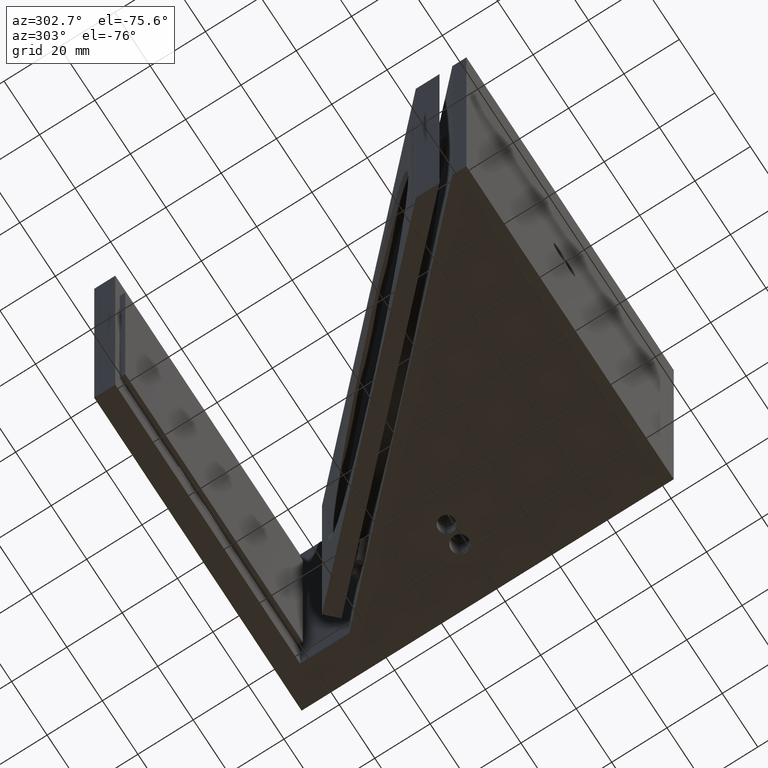
[diagram: clean part render]
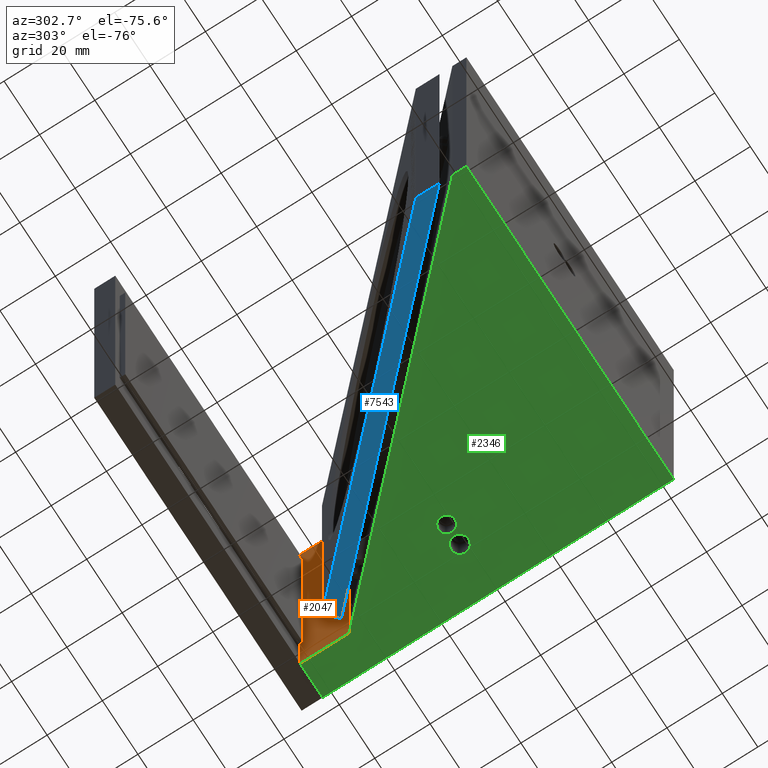
[diagram: same view with three faces highlighted in distinct colors, each labeled with its STEP entity id]
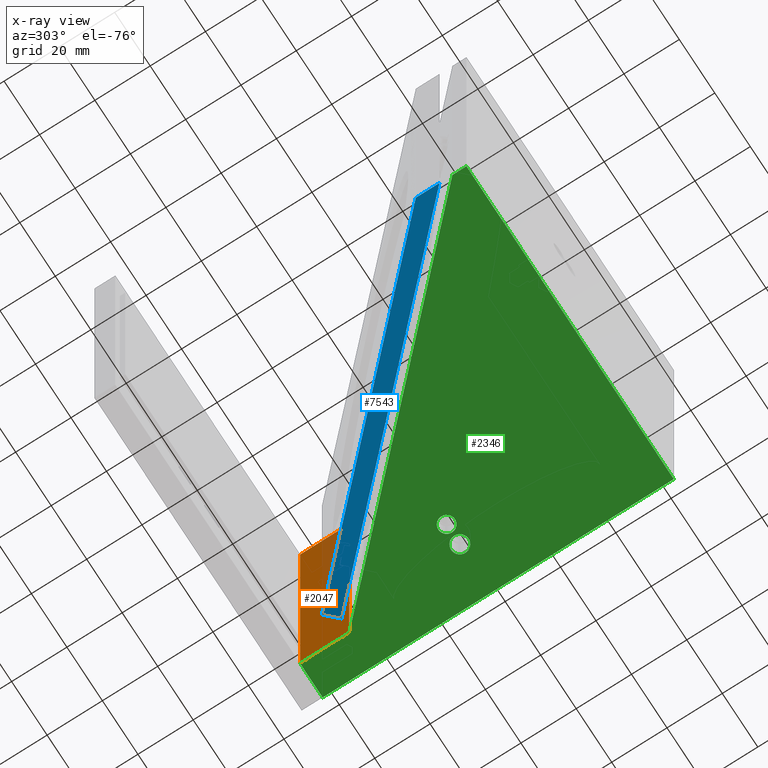
[diagram: x-ray of the same camera — body ghosted, the three highlighted faces saturated]
A machine part, auxiliary view with three faces highlighted in distinct colors.
The next image is the same camera in x-ray (body ghosted, the three faces saturated) — at least one of them is partly hidden behind the body in this view.
Their STEP definitions:

[orange] entity #2047 — the highlighted planar face has unit normal (1, 0, 0).
#2047 = ADVANCED_FACE ( 'NONE', ( #16102 ), #16151, .F. ) ;
#2049 = EDGE_LOOP ( 'NONE', ( #2051, #2056, #2061, #2065 ) ) ;
#2051 = ORIENTED_EDGE ( 'NONE', *, *, #2052, .T. ) ;
#2052 = EDGE_CURVE ( 'NONE', #2086, #2055, #16146, .T. ) ;
#2055 = VERTEX_POINT ( 'NONE', #16142 ) ;
#2056 = ORIENTED_EDGE ( 'NONE', *, *, #2058, .F. ) ;
#2058 = EDGE_CURVE ( 'NONE', #2060, #2055, #16141, .T. ) ;
#2060 = VERTEX_POINT ( 'NONE', #16137 ) ;
#2061 = ORIENTED_EDGE ( 'NONE', *, *, #2063, .F. ) ;
#2063 = EDGE_CURVE ( 'NONE', #2091, #2060, #16135, .T. ) ;
#2065 = ORIENTED_EDGE ( 'NONE', *, *, #2090, .T. ) ;
#2086 = VERTEX_POINT ( 'NONE', #16211 ) ;
#2090 = EDGE_CURVE ( 'NONE', #2091, #2086, #16210, .T. ) ;
#2091 = VERTEX_POINT ( 'NONE', #16206 ) ;
#16102 = FACE_OUTER_BOUND ( 'NONE', #2049, .T. ) ;
#16132 = DIRECTION ( 'NONE',  ( 0.0000000000000000000, -1.000000000000000000, 0.0000000000000000000 ) ) ;
#16133 = VECTOR ( 'NONE', #16132, 39.37007874015748100 ) ;
#16134 = CARTESIAN_POINT ( 'NONE',  ( 3.283458390377920600, 4.862681264191446800, 5.250000000000000000 ) ) ;
#16135 = LINE ( 'NONE', #16134, #16133 ) ;
#16137 = CARTESIAN_POINT ( 'NONE',  ( 3.283458390377920600, 4.162681264191463400, 5.250000000000000000 ) ) ;
#16138 = DIRECTION ( 'NONE',  ( 0.0000000000000000000, 0.0000000000000000000, -1.000000000000000000 ) ) ;
#16139 = VECTOR ( 'NONE', #16138, 39.37007874015748100 ) ;
#16140 = CARTESIAN_POINT ( 'NONE',  ( 3.283458390377920600, 4.162681264191463400, 5.250000000000000000 ) ) ;
#16141 = LINE ( 'NONE', #16140, #16139 ) ;
#16142 = CARTESIAN_POINT ( 'NONE',  ( 3.283458390377920600, 4.162681264191463400, 0.0000000000000000000 ) ) ;
#16143 = DIRECTION ( 'NONE',  ( 0.0000000000000000000, -1.000000000000000000, 0.0000000000000000000 ) ) ;
#16144 = VECTOR ( 'NONE', #16143, 39.37007874015748100 ) ;
#16145 = CARTESIAN_POINT ( 'NONE',  ( 3.283458390377920600, 4.862681264191446800, 0.0000000000000000000 ) ) ;
#16146 = LINE ( 'NONE', #16145, #16144 ) ;
#16147 = DIRECTION ( 'NONE',  ( 0.0000000000000000000, 0.0000000000000000000, -1.000000000000000000 ) ) ;
#16148 = DIRECTION ( 'NONE',  ( 1.000000000000000000, 0.0000000000000000000, 0.0000000000000000000 ) ) ;
#16149 = CARTESIAN_POINT ( 'NONE',  ( 3.283458390377920600, 4.862681264191446800, 5.250000000000000000 ) ) ;
#16150 = AXIS2_PLACEMENT_3D ( 'NONE', #16149, #16148, #16147 ) ;
#16151 = PLANE ( 'NONE',  #16150 ) ;
#16206 = CARTESIAN_POINT ( 'NONE',  ( 3.283458390377920600, 4.862681264191446800, 5.250000000000000000 ) ) ;
#16207 = DIRECTION ( 'NONE',  ( 0.0000000000000000000, 0.0000000000000000000, -1.000000000000000000 ) ) ;
#16208 = VECTOR ( 'NONE', #16207, 39.37007874015748100 ) ;
#16209 = CARTESIAN_POINT ( 'NONE',  ( 3.283458390377920600, 4.862681264191446800, 5.250000000000000000 ) ) ;
#16210 = LINE ( 'NONE', #16209, #16208 ) ;
#16211 = CARTESIAN_POINT ( 'NONE',  ( 3.283458390377920600, 4.862681264191446800, 0.0000000000000000000 ) ) ;

[blue] entity #7543 — the highlighted planar face has unit normal (0, -0, 1).
#6770 = EDGE_CURVE ( 'NONE', #6772, #6774, #25186, .T. ) ;
#6772 = VERTEX_POINT ( 'NONE', #25182 ) ;
#6774 = VERTEX_POINT ( 'NONE', #25181 ) ;
#7504 = EDGE_LOOP ( 'NONE', ( #7505, #7510, #7513, #7515 ) ) ;
#7505 = ORIENTED_EDGE ( 'NONE', *, *, #7506, .F. ) ;
#7506 = EDGE_CURVE ( 'NONE', #7507, #7508, #26295, .T. ) ;
#7507 = VERTEX_POINT ( 'NONE', #26291 ) ;
#7508 = VERTEX_POINT ( 'NONE', #26351 ) ;
#7510 = ORIENTED_EDGE ( 'NONE', *, *, #7511, .T. ) ;
#7511 = EDGE_CURVE ( 'NONE', #7507, #6772, #26350, .T. ) ;
#7513 = ORIENTED_EDGE ( 'NONE', *, *, #6770, .T. ) ;
#7515 = ORIENTED_EDGE ( 'NONE', *, *, #7517, .F. ) ;
#7517 = EDGE_CURVE ( 'NONE', #7508, #6774, #26345, .T. ) ;
#7543 = ADVANCED_FACE ( 'NONE', ( #26433 ), #26414, .F. ) ;
#25181 = CARTESIAN_POINT ( 'NONE',  ( 2.914165028216014500, 4.313925924965463600, -5.463695987328526400E-016 ) ) ;
#25182 = CARTESIAN_POINT ( 'NONE',  ( -0.8165416096220778900, 0.5832192871273520500, 1.092739197465705300E-015 ) ) ;
#25183 = DIRECTION ( 'NONE',  ( 0.7071067811865458000, 0.7071067811865493500, -5.967389539223752300E-017 ) ) ;
#25184 = VECTOR ( 'NONE', #25183, 39.37007874015748100 ) ;
#25185 = CARTESIAN_POINT ( 'NONE',  ( -1.050582693896948500, 0.3491782028524804100, 0.0000000000000000000 ) ) ;
#25186 = LINE ( 'NONE', #25185, #25184 ) ;
#26291 = CARTESIAN_POINT ( 'NONE',  ( -0.8165416096220781100, 0.2466364592825541800, 5.463695987328526400E-016 ) ) ;
#26292 = DIRECTION ( 'NONE',  ( 0.7071067811865458000, 0.7071067811865493500, -5.967389539223752300E-017 ) ) ;
#26293 = VECTOR ( 'NONE', #26292, 39.37007874015748100 ) ;
#26294 = CARTESIAN_POINT ( 'NONE',  ( -0.8822912799745500400, 0.1808867889300820600, 0.0000000000000000000 ) ) ;
#26295 = LINE ( 'NONE', #26294, #26293 ) ;
#26342 = DIRECTION ( 'NONE',  ( -0.7071067811865489100, 0.7071067811865460200, -7.582389110198106800E-017 ) ) ;
#26343 = VECTOR ( 'NONE', #26342, 39.37007874015748900 ) ;
#26344 = CARTESIAN_POINT ( 'NONE',  ( 3.082456442138413500, 4.145634511043065900, -5.463695987328526400E-016 ) ) ;
#26345 = LINE ( 'NONE', #26344, #26343 ) ;
#26347 = DIRECTION ( 'NONE',  ( -1.110223024625153700E-016, 1.000000000000000000, 1.458569382141291400E-015 ) ) ;
#26348 = VECTOR ( 'NONE', #26347, 39.37007874015748100 ) ;
#26349 = CARTESIAN_POINT ( 'NONE',  ( -0.8165416096220781100, 0.2466364592825541800, 5.463695987328526400E-016 ) ) ;
#26350 = LINE ( 'NONE', #26349, #26348 ) ;
#26351 = CARTESIAN_POINT ( 'NONE',  ( 3.082456442138413500, 4.145634511043065900, -5.463695987328526400E-016 ) ) ;
#26409 = DIRECTION ( 'NONE',  ( -0.7071067811865458000, -0.7071067811865493500, 5.967389539223753500E-017 ) ) ;
#26410 = DIRECTION ( 'NONE',  ( 8.909205914159249700E-017, -4.700426958256610100E-018, 1.000000000000000000 ) ) ;
#26411 = CARTESIAN_POINT ( 'NONE',  ( -0.8822912799745500400, 0.1808867889300820600, 0.0000000000000000000 ) ) ;
#26412 = AXIS2_PLACEMENT_3D ( 'NONE', #26411, #26410, #26409 ) ;
#26414 = PLANE ( 'NONE',  #26412 ) ;
#26433 = FACE_OUTER_BOUND ( 'NONE', #7504, .T. ) ;

[green] entity #2346 — the highlighted planar face has unit normal (0, 0, 1).
#1656 = VERTEX_POINT ( 'NONE', #15254 ) ;
#1680 = EDGE_CURVE ( 'NONE', #1656, #1682, #15323, .T. ) ;
#1682 = VERTEX_POINT ( 'NONE', #15318 ) ;
#2003 = EDGE_CURVE ( 'NONE', #2005, #2007, #16043, .T. ) ;
#2005 = VERTEX_POINT ( 'NONE', #16039 ) ;
#2007 = VERTEX_POINT ( 'NONE', #16038 ) ;
#2052 = EDGE_CURVE ( 'NONE', #2086, #2055, #16146, .T. ) ;
#2055 = VERTEX_POINT ( 'NONE', #16142 ) ;
#2084 = EDGE_CURVE ( 'NONE', #2007, #2086, #16155, .T. ) ;
#2086 = VERTEX_POINT ( 'NONE', #16211 ) ;
#2257 = EDGE_CURVE ( 'NONE', #2264, #2005, #16361, .T. ) ;
#2262 = EDGE_CURVE ( 'NONE', #2291, #2264, #16446, .T. ) ;
#2264 = VERTEX_POINT ( 'NONE', #16442 ) ;
#2288 = EDGE_CURVE ( 'NONE', #2055, #2291, #16454, .T. ) ;
#2291 = VERTEX_POINT ( 'NONE', #16450 ) ;
#2329 = ORIENTED_EDGE ( 'NONE', *, *, #2262, .F. ) ;
#2330 = ORIENTED_EDGE ( 'NONE', *, *, #2288, .F. ) ;
#2332 = ORIENTED_EDGE ( 'NONE', *, *, #2052, .F. ) ;
#2333 = ORIENTED_EDGE ( 'NONE', *, *, #2084, .F. ) ;
#2346 = ADVANCED_FACE ( 'NONE', ( #16475, #16474, #16473 ), #16514, .F. ) ;
#2349 = EDGE_LOOP ( 'NONE', ( #2351, #2356 ) ) ;
#2351 = ORIENTED_EDGE ( 'NONE', *, *, #2353, .F. ) ;
#2353 = EDGE_CURVE ( 'NONE', #2544, #2541, #16508, .T. ) ;
#2356 = ORIENTED_EDGE ( 'NONE', *, *, #2543, .F. ) ;
#2461 = EDGE_LOOP ( 'NONE', ( #2462, #2464 ) ) ;
#2462 = ORIENTED_EDGE ( 'NONE', *, *, #2463, .F. ) ;
#2463 = EDGE_CURVE ( 'NONE', #1682, #1656, #16732, .T. ) ;
#2464 = ORIENTED_EDGE ( 'NONE', *, *, #1680, .F. ) ;
#2466 = EDGE_LOOP ( 'NONE', ( #2468, #2470, #2329, #2330, #2332, #2333 ) ) ;
#2468 = ORIENTED_EDGE ( 'NONE', *, *, #2003, .F. ) ;
#2470 = ORIENTED_EDGE ( 'NONE', *, *, #2257, .F. ) ;
#2541 = VERTEX_POINT ( 'NONE', #16909 ) ;
#2543 = EDGE_CURVE ( 'NONE', #2541, #2544, #16908, .T. ) ;
#2544 = VERTEX_POINT ( 'NONE', #16903 ) ;
#12851 = DIRECTION ( 'NONE',  ( -1.000000000000000000, 0.0000000000000000000, 0.0000000000000000000 ) ) ;
#15254 = CARTESIAN_POINT ( 'NONE',  ( 2.901568626598394200, 2.455681264191445800, 0.0000000000000000000 ) ) ;
#15318 = CARTESIAN_POINT ( 'NONE',  ( 2.665348154157449300, 2.455681264191445800, 0.0000000000000000000 ) ) ;
#15319 = DIRECTION ( 'NONE',  ( -1.000000000000000000, 0.0000000000000000000, 0.0000000000000000000 ) ) ;
#15320 = DIRECTION ( 'NONE',  ( 0.0000000000000000000, 0.0000000000000000000, -1.000000000000000000 ) ) ;
#15321 = CARTESIAN_POINT ( 'NONE',  ( 2.783458390377921500, 2.455681264191445800, 0.0000000000000000000 ) ) ;
#15322 = AXIS2_PLACEMENT_3D ( 'NONE', #15321, #15320, #15319 ) ;
#15323 = CIRCLE ( 'NONE', #15322, 0.1181102362204725500 ) ;
#16038 = CARTESIAN_POINT ( 'NONE',  ( 3.783458390377921500, 4.862681264191446800, 0.0000000000000000000 ) ) ;
#16039 = CARTESIAN_POINT ( 'NONE',  ( 3.783458390377921500, -0.1373187358085533000, 0.0000000000000000000 ) ) ;
#16040 = DIRECTION ( 'NONE',  ( 0.0000000000000000000, 1.000000000000000000, 0.0000000000000000000 ) ) ;
#16041 = VECTOR ( 'NONE', #16040, 39.37007874015748100 ) ;
#16042 = CARTESIAN_POINT ( 'NONE',  ( 3.783458390377921500, -0.1373187358085533000, 0.0000000000000000000 ) ) ;
#16043 = LINE ( 'NONE', #16042, #16041 ) ;
#16142 = CARTESIAN_POINT ( 'NONE',  ( 3.283458390377920600, 4.162681264191463400, 0.0000000000000000000 ) ) ;
#16143 = DIRECTION ( 'NONE',  ( 0.0000000000000000000, -1.000000000000000000, 0.0000000000000000000 ) ) ;
#16144 = VECTOR ( 'NONE', #16143, 39.37007874015748100 ) ;
#16145 = CARTESIAN_POINT ( 'NONE',  ( 3.283458390377920600, 4.862681264191446800, 0.0000000000000000000 ) ) ;
#16146 = LINE ( 'NONE', #16145, #16144 ) ;
#16153 = VECTOR ( 'NONE', #12851, 39.37007874015748100 ) ;
#16154 = CARTESIAN_POINT ( 'NONE',  ( 3.783458390377921500, 4.862681264191446800, 0.0000000000000000000 ) ) ;
#16155 = LINE ( 'NONE', #16154, #16153 ) ;
#16211 = CARTESIAN_POINT ( 'NONE',  ( 3.283458390377920600, 4.862681264191446800, 0.0000000000000000000 ) ) ;
#16361 = LINE ( 'NONE', #16414, #16413 ) ;
#16412 = DIRECTION ( 'NONE',  ( 1.000000000000000000, 1.299112496987082100E-016, 0.0000000000000000000 ) ) ;
#16413 = VECTOR ( 'NONE', #16412, 39.37007874015748100 ) ;
#16414 = CARTESIAN_POINT ( 'NONE',  ( 3.783458390377921500, -0.1373187358085533000, 0.0000000000000000000 ) ) ;
#16442 = CARTESIAN_POINT ( 'NONE',  ( -0.8165416096220781100, -0.1373187358085538900, 0.0000000000000000000 ) ) ;
#16443 = DIRECTION ( 'NONE',  ( 0.0000000000000000000, -1.000000000000000000, 0.0000000000000000000 ) ) ;
#16444 = VECTOR ( 'NONE', #16443, 39.37007874015748100 ) ;
#16445 = CARTESIAN_POINT ( 'NONE',  ( -0.8165416096220781100, -0.1373187358085538900, 0.0000000000000000000 ) ) ;
#16446 = LINE ( 'NONE', #16445, #16444 ) ;
#16450 = CARTESIAN_POINT ( 'NONE',  ( -0.8165416096220781100, 0.06268126419144612300, 0.0000000000000000000 ) ) ;
#16451 = DIRECTION ( 'NONE',  ( -0.7071067811865459100, -0.7071067811865490200, 0.0000000000000000000 ) ) ;
#16452 = VECTOR ( 'NONE', #16451, 39.37007874015748900 ) ;
#16453 = CARTESIAN_POINT ( 'NONE',  ( 3.283458390377920600, 4.162681264191463400, 0.0000000000000000000 ) ) ;
#16454 = LINE ( 'NONE', #16453, #16452 ) ;
#16473 = FACE_OUTER_BOUND ( 'NONE', #2466, .T. ) ;
#16474 = FACE_BOUND ( 'NONE', #2461, .T. ) ;
#16475 = FACE_BOUND ( 'NONE', #2349, .T. ) ;
#16506 = CARTESIAN_POINT ( 'NONE',  ( 3.076255418959890100, 2.455681264191445800, 0.0000000000000000000 ) ) ;
#16507 = AXIS2_PLACEMENT_3D ( 'NONE', #16506, #16559, #16558 ) ;
#16508 = CIRCLE ( 'NONE', #16507, 0.1249999999999999000 ) ;
#16510 = DIRECTION ( 'NONE',  ( 1.000000000000000000, 0.0000000000000000000, 0.0000000000000000000 ) ) ;
#16511 = DIRECTION ( 'NONE',  ( 0.0000000000000000000, 0.0000000000000000000, 1.000000000000000000 ) ) ;
#16512 = CARTESIAN_POINT ( 'NONE',  ( 3.783458390377921500, 4.862681264191446800, 0.0000000000000000000 ) ) ;
#16513 = AXIS2_PLACEMENT_3D ( 'NONE', #16512, #16511, #16510 ) ;
#16514 = PLANE ( 'NONE',  #16513 ) ;
#16558 = DIRECTION ( 'NONE',  ( -1.000000000000000000, 0.0000000000000000000, 0.0000000000000000000 ) ) ;
#16559 = DIRECTION ( 'NONE',  ( 0.0000000000000000000, 0.0000000000000000000, -1.000000000000000000 ) ) ;
#16728 = DIRECTION ( 'NONE',  ( -1.000000000000000000, 0.0000000000000000000, 0.0000000000000000000 ) ) ;
#16729 = DIRECTION ( 'NONE',  ( 0.0000000000000000000, 0.0000000000000000000, -1.000000000000000000 ) ) ;
#16730 = CARTESIAN_POINT ( 'NONE',  ( 2.783458390377921500, 2.455681264191445800, 0.0000000000000000000 ) ) ;
#16731 = AXIS2_PLACEMENT_3D ( 'NONE', #16730, #16729, #16728 ) ;
#16732 = CIRCLE ( 'NONE', #16731, 0.1181102362204725500 ) ;
#16903 = CARTESIAN_POINT ( 'NONE',  ( 2.951255418959890100, 2.455681264191445800, 0.0000000000000000000 ) ) ;
#16904 = DIRECTION ( 'NONE',  ( -1.000000000000000000, 0.0000000000000000000, 0.0000000000000000000 ) ) ;
#16905 = DIRECTION ( 'NONE',  ( 0.0000000000000000000, 0.0000000000000000000, -1.000000000000000000 ) ) ;
#16906 = CARTESIAN_POINT ( 'NONE',  ( 3.076255418959890100, 2.455681264191445800, 0.0000000000000000000 ) ) ;
#16907 = AXIS2_PLACEMENT_3D ( 'NONE', #16906, #16905, #16904 ) ;
#16908 = CIRCLE ( 'NONE', #16907, 0.1249999999999999000 ) ;
#16909 = CARTESIAN_POINT ( 'NONE',  ( 3.201255418959890100, 2.455681264191445800, 0.0000000000000000000 ) ) ;